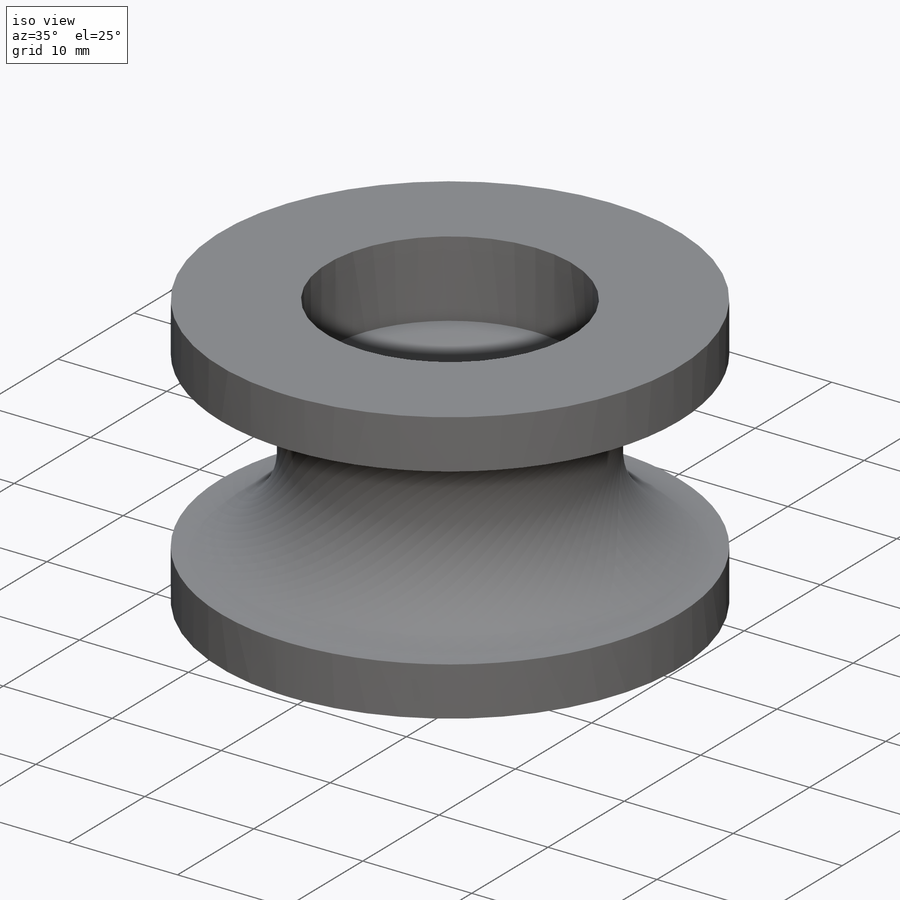
[diagram: iso view]
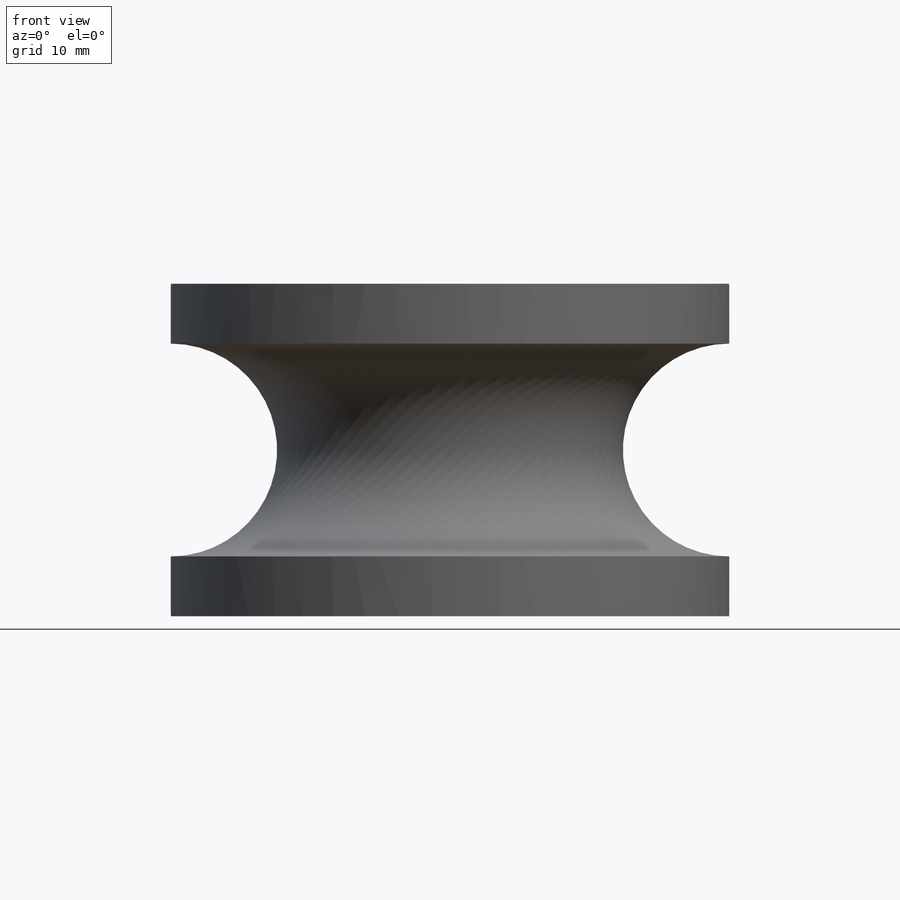
[diagram: front view]
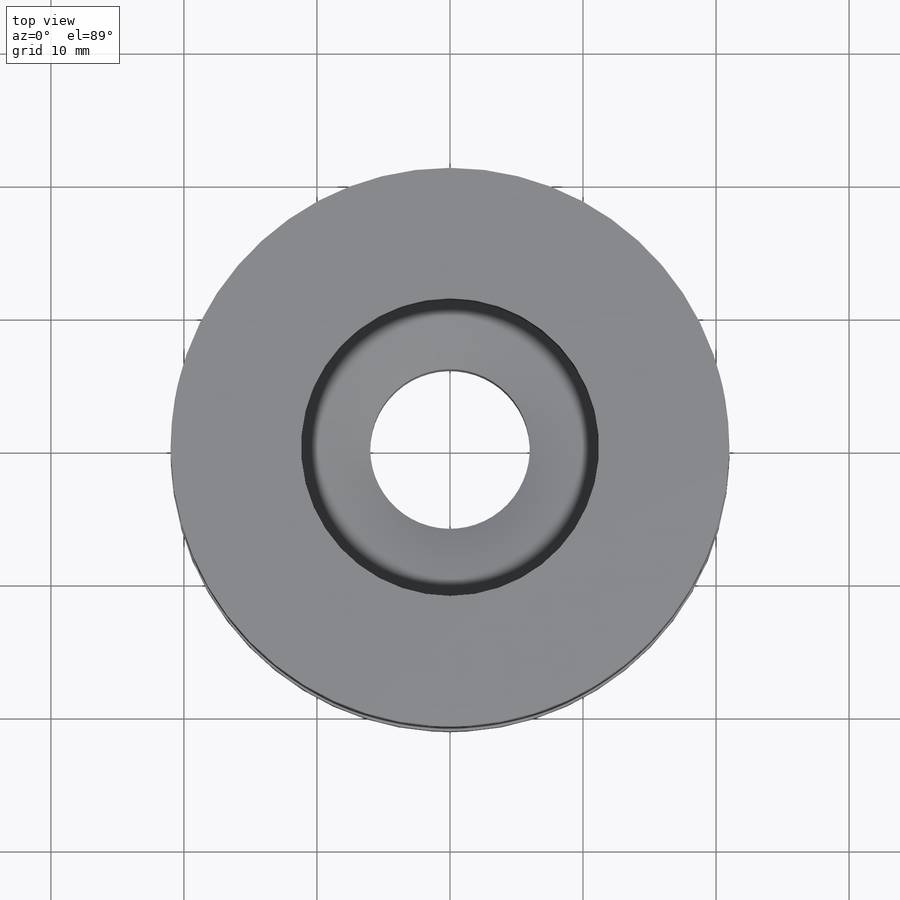
[diagram: top view]
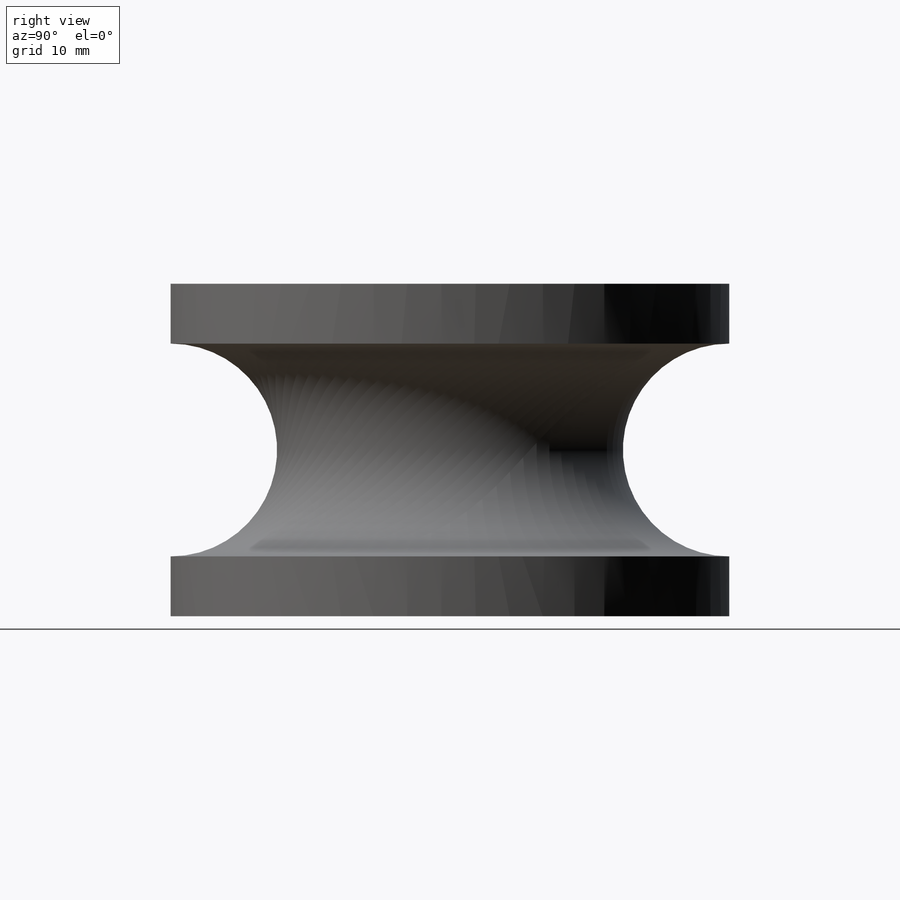
[diagram: right view]
SOLIDWORKS PART (.sldprt)
format: sldprt  version: not decoded by parser v0  size: 254,976 bytes
history: native  units: mm
features: sketch x6, cut_extrude x3, sweep x2, material x1, extrude x1 (+13 scaffold rows collapsed)
feature tree (26):
  scaffold x13  (default folders/planes/origin — collapsed)
  material  "ABS"
  sketch  "Sketch1"  dims[D1=42.0mm]
  extrude  "Boss-Extrude2"  Depth=25mm
  sketch  "Sketch3"  dims[D1=4.0mm]
  cut_extrude  "Cut-Extrude1"  [1 undecoded]
  sketch  "Sketch4"  dims[D1=~8.506793mm]
  cut_extrude  "Cut-Extrude2"  Depth=7mm
  sketch  "Sketch5"  dims[D1=22.4mm]
  cut_extrude  "Cut-Extrude3"  Depth=7mm
  sketch  "Sketch8"  dims[D1=8.05mm]
  sweep  "Cut-Sweep1"
  sketch  "Sketch10"  dims[D1=7.0mm]
  sweep  "Cut-Sweep3"
decode coverage: 9 of 12 modeling features carry decoded parameters
note: ~ marks probable driven/reference dimensions
note: 1 parameter value undecoded
note: suppression state not decoded; provenance and decode notes live in map.json
